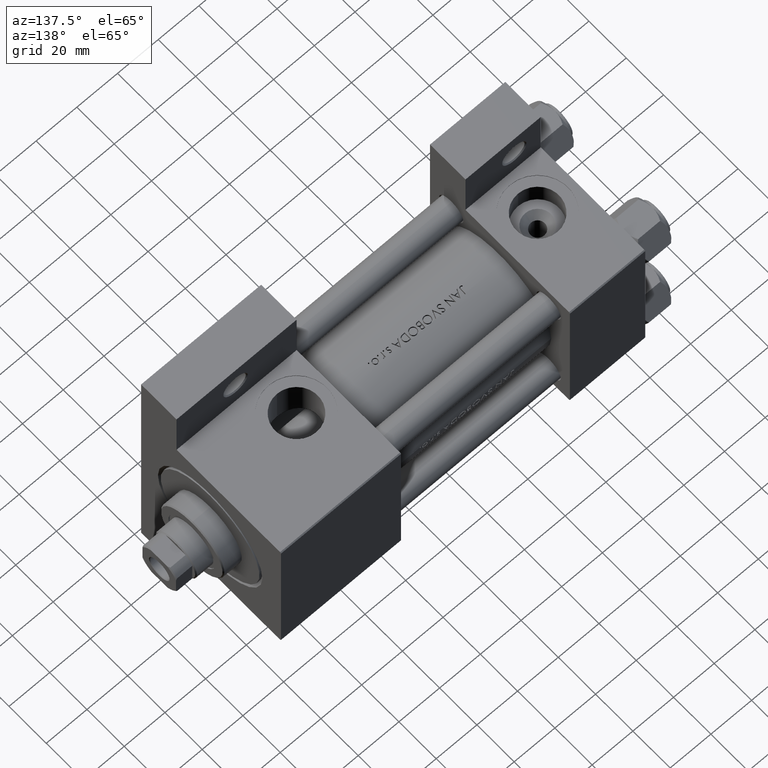
[diagram: clean part render]
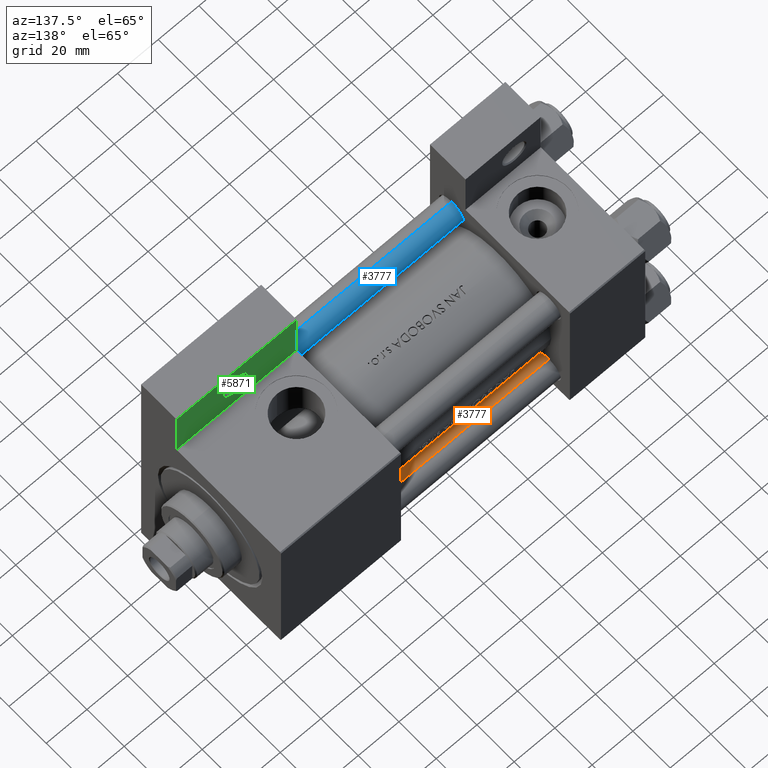
[diagram: same view with three faces highlighted in distinct colors, each labeled with its STEP entity id]
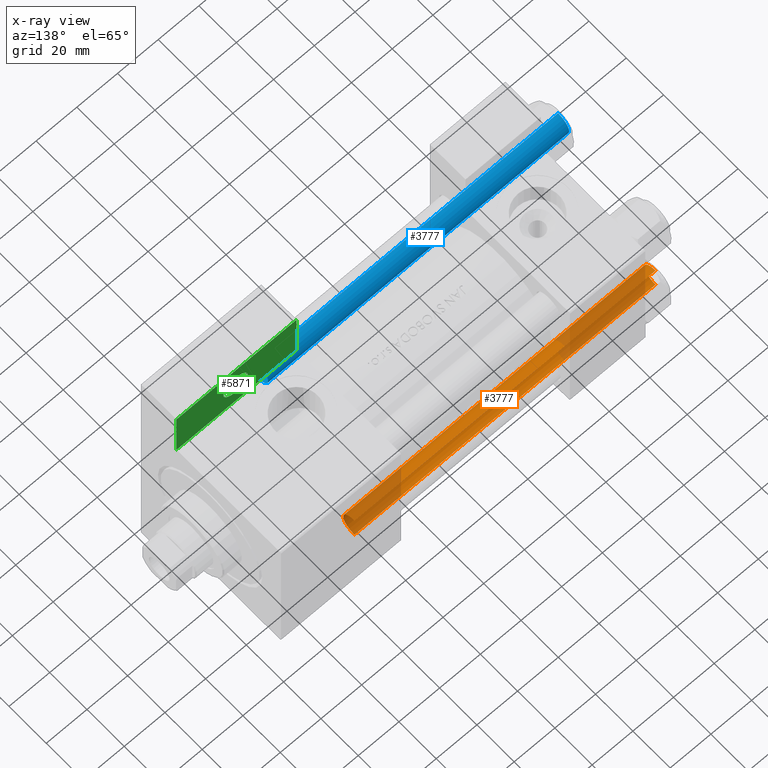
[diagram: x-ray of the same camera — body ghosted, the three highlighted faces saturated]
A machine part, auxiliary view with three faces highlighted in distinct colors.
The next image is the same camera in x-ray (body ghosted, the three faces saturated) — at least one of them is partly hidden behind the body in this view.
Their STEP definitions:

[orange] entity #3777 — the highlighted cylindrical surface (edge-blend (fillet) strip) has radius 6 mm, axis along (1, -0, -0).
#628 = EDGE_CURVE ( 'NONE', #18666, #28466, #14059, .T. ) ;
#2081 = DIRECTION ( 'NONE',  ( -1.000000000000000000, 0.000000000000000000, 0.000000000000000000 ) ) ;
#3539 = CARTESIAN_POINT ( 'NONE',  ( 6.000000000000000888, 7.347880794884120722E-16, 149.0000000000000000 ) ) ;
#3607 = CARTESIAN_POINT ( 'NONE',  ( -6.000000000000000888, 0.000000000000000000, 149.0000000000000000 ) ) ;
#3777 = ADVANCED_FACE ( 'NONE', ( #17286 ), #36714, .T. ) ;
#6108 = AXIS2_PLACEMENT_3D ( 'NONE', #34560, #18861, #15142 ) ;
#6554 = LINE ( 'NONE', #3539, #33699 ) ;
#6727 = ORIENTED_EDGE ( 'NONE', *, *, #628, .T. ) ;
#14059 = CIRCLE ( 'NONE', #42704, 6.000000000000000888 ) ;
#15142 = DIRECTION ( 'NONE',  ( 1.000000000000000000, 0.000000000000000000, 0.000000000000000000 ) ) ;
#15363 = DIRECTION ( 'NONE',  ( -0.000000000000000000, -0.000000000000000000, 1.000000000000000000 ) ) ;
#17286 = FACE_OUTER_BOUND ( 'NONE', #31958, .T. ) ;
#18251 = CARTESIAN_POINT ( 'NONE',  ( 0.000000000000000000, 0.000000000000000000, 149.0000000000000000 ) ) ;
#18666 = VERTEX_POINT ( 'NONE', #43429 ) ;
#18861 = DIRECTION ( 'NONE',  ( 0.000000000000000000, 0.000000000000000000, -1.000000000000000000 ) ) ;
#20244 = EDGE_CURVE ( 'NONE', #36666, #18666, #26767, .T. ) ;
#21005 = EDGE_CURVE ( 'NONE', #46620, #36666, #29941, .T. ) ;
#22055 = ORIENTED_EDGE ( 'NONE', *, *, #20244, .T. ) ;
#26222 = CARTESIAN_POINT ( 'NONE',  ( -6.000000000000000888, 0.000000000000000000, 148.5000000000000000 ) ) ;
#26223 = CARTESIAN_POINT ( 'NONE',  ( 6.000000000000000888, 7.347880794884120722E-16, 0.5000000000000281997 ) ) ;
#26767 = LINE ( 'NONE', #3607, #42679 ) ;
#28158 = CARTESIAN_POINT ( 'NONE',  ( 6.000000000000000888, 7.347880794884120722E-16, 148.5000000000000000 ) ) ;
#28466 = VERTEX_POINT ( 'NONE', #26223 ) ;
#29941 = CIRCLE ( 'NONE', #6108, 6.000000000000000888 ) ;
#31064 = CARTESIAN_POINT ( 'NONE',  ( 0.000000000000000000, 0.000000000000000000, 0.5000000000000281997 ) ) ;
#31223 = ORIENTED_EDGE ( 'NONE', *, *, #41692, .F. ) ;
#31958 = EDGE_LOOP ( 'NONE', ( #31223, #47998, #22055, #6727 ) ) ;
#33699 = VECTOR ( 'NONE', #36937, 1000.000000000000000 ) ;
#34560 = CARTESIAN_POINT ( 'NONE',  ( 0.000000000000000000, 0.000000000000000000, 148.5000000000000000 ) ) ;
#36666 = VERTEX_POINT ( 'NONE', #26222 ) ;
#36714 = CYLINDRICAL_SURFACE ( 'NONE', #43569, 6.000000000000000888 ) ;
#36937 = DIRECTION ( 'NONE',  ( -0.000000000000000000, -0.000000000000000000, -1.000000000000000000 ) ) ;
#37496 = DIRECTION ( 'NONE',  ( -0.000000000000000000, -0.000000000000000000, -1.000000000000000000 ) ) ;
#37537 = DIRECTION ( 'NONE',  ( 1.000000000000000000, 0.000000000000000000, 0.000000000000000000 ) ) ;
#40931 = DIRECTION ( 'NONE',  ( -0.000000000000000000, -0.000000000000000000, -1.000000000000000000 ) ) ;
#41692 = EDGE_CURVE ( 'NONE', #46620, #28466, #6554, .T. ) ;
#42679 = VECTOR ( 'NONE', #37496, 1000.000000000000000 ) ;
#42704 = AXIS2_PLACEMENT_3D ( 'NONE', #31064, #15363, #37537 ) ;
#43429 = CARTESIAN_POINT ( 'NONE',  ( -6.000000000000000888, 0.000000000000000000, 0.5000000000000281997 ) ) ;
#43569 = AXIS2_PLACEMENT_3D ( 'NONE', #18251, #40931, #2081 ) ;
#46620 = VERTEX_POINT ( 'NONE', #28158 ) ;
#47998 = ORIENTED_EDGE ( 'NONE', *, *, #21005, .T. ) ;

[blue] entity #3777 — the highlighted cylindrical surface (edge-blend (fillet) strip) has radius 6 mm, axis along (1, 0, 0).
#628 = EDGE_CURVE ( 'NONE', #18666, #28466, #14059, .T. ) ;
#2081 = DIRECTION ( 'NONE',  ( -1.000000000000000000, 0.000000000000000000, 0.000000000000000000 ) ) ;
#3539 = CARTESIAN_POINT ( 'NONE',  ( 6.000000000000000888, 7.347880794884120722E-16, 149.0000000000000000 ) ) ;
#3607 = CARTESIAN_POINT ( 'NONE',  ( -6.000000000000000888, 0.000000000000000000, 149.0000000000000000 ) ) ;
#3777 = ADVANCED_FACE ( 'NONE', ( #17286 ), #36714, .T. ) ;
#6108 = AXIS2_PLACEMENT_3D ( 'NONE', #34560, #18861, #15142 ) ;
#6554 = LINE ( 'NONE', #3539, #33699 ) ;
#6727 = ORIENTED_EDGE ( 'NONE', *, *, #628, .T. ) ;
#14059 = CIRCLE ( 'NONE', #42704, 6.000000000000000888 ) ;
#15142 = DIRECTION ( 'NONE',  ( 1.000000000000000000, 0.000000000000000000, 0.000000000000000000 ) ) ;
#15363 = DIRECTION ( 'NONE',  ( -0.000000000000000000, -0.000000000000000000, 1.000000000000000000 ) ) ;
#17286 = FACE_OUTER_BOUND ( 'NONE', #31958, .T. ) ;
#18251 = CARTESIAN_POINT ( 'NONE',  ( 0.000000000000000000, 0.000000000000000000, 149.0000000000000000 ) ) ;
#18666 = VERTEX_POINT ( 'NONE', #43429 ) ;
#18861 = DIRECTION ( 'NONE',  ( 0.000000000000000000, 0.000000000000000000, -1.000000000000000000 ) ) ;
#20244 = EDGE_CURVE ( 'NONE', #36666, #18666, #26767, .T. ) ;
#21005 = EDGE_CURVE ( 'NONE', #46620, #36666, #29941, .T. ) ;
#22055 = ORIENTED_EDGE ( 'NONE', *, *, #20244, .T. ) ;
#26222 = CARTESIAN_POINT ( 'NONE',  ( -6.000000000000000888, 0.000000000000000000, 148.5000000000000000 ) ) ;
#26223 = CARTESIAN_POINT ( 'NONE',  ( 6.000000000000000888, 7.347880794884120722E-16, 0.5000000000000281997 ) ) ;
#26767 = LINE ( 'NONE', #3607, #42679 ) ;
#28158 = CARTESIAN_POINT ( 'NONE',  ( 6.000000000000000888, 7.347880794884120722E-16, 148.5000000000000000 ) ) ;
#28466 = VERTEX_POINT ( 'NONE', #26223 ) ;
#29941 = CIRCLE ( 'NONE', #6108, 6.000000000000000888 ) ;
#31064 = CARTESIAN_POINT ( 'NONE',  ( 0.000000000000000000, 0.000000000000000000, 0.5000000000000281997 ) ) ;
#31223 = ORIENTED_EDGE ( 'NONE', *, *, #41692, .F. ) ;
#31958 = EDGE_LOOP ( 'NONE', ( #31223, #47998, #22055, #6727 ) ) ;
#33699 = VECTOR ( 'NONE', #36937, 1000.000000000000000 ) ;
#34560 = CARTESIAN_POINT ( 'NONE',  ( 0.000000000000000000, 0.000000000000000000, 148.5000000000000000 ) ) ;
#36666 = VERTEX_POINT ( 'NONE', #26222 ) ;
#36714 = CYLINDRICAL_SURFACE ( 'NONE', #43569, 6.000000000000000888 ) ;
#36937 = DIRECTION ( 'NONE',  ( -0.000000000000000000, -0.000000000000000000, -1.000000000000000000 ) ) ;
#37496 = DIRECTION ( 'NONE',  ( -0.000000000000000000, -0.000000000000000000, -1.000000000000000000 ) ) ;
#37537 = DIRECTION ( 'NONE',  ( 1.000000000000000000, 0.000000000000000000, 0.000000000000000000 ) ) ;
#40931 = DIRECTION ( 'NONE',  ( -0.000000000000000000, -0.000000000000000000, -1.000000000000000000 ) ) ;
#41692 = EDGE_CURVE ( 'NONE', #46620, #28466, #6554, .T. ) ;
#42679 = VECTOR ( 'NONE', #37496, 1000.000000000000000 ) ;
#42704 = AXIS2_PLACEMENT_3D ( 'NONE', #31064, #15363, #37537 ) ;
#43429 = CARTESIAN_POINT ( 'NONE',  ( -6.000000000000000888, 0.000000000000000000, 0.5000000000000281997 ) ) ;
#43569 = AXIS2_PLACEMENT_3D ( 'NONE', #18251, #40931, #2081 ) ;
#46620 = VERTEX_POINT ( 'NONE', #28158 ) ;
#47998 = ORIENTED_EDGE ( 'NONE', *, *, #21005, .T. ) ;

[green] entity #5871 — the highlighted planar face has unit normal (0, -1, 0).
#909 = EDGE_CURVE ( 'NONE', #41778, #4767, #4542, .T. ) ;
#1604 = CIRCLE ( 'NONE', #26258, 5.999500000000018929 ) ;
#2613 = CARTESIAN_POINT ( 'NONE',  ( 150.0000000000000284, -51.00000000000000000, -18.50000000000000000 ) ) ;
#3051 = VERTEX_POINT ( 'NONE', #16500 ) ;
#3753 = DIRECTION ( 'NONE',  ( 0.000000000000000000, 0.000000000000000000, -1.000000000000000000 ) ) ;
#3780 = ORIENTED_EDGE ( 'NONE', *, *, #909, .F. ) ;
#4124 = ORIENTED_EDGE ( 'NONE', *, *, #7092, .F. ) ;
#4542 = LINE ( 'NONE', #34424, #8494 ) ;
#4767 = VERTEX_POINT ( 'NONE', #42672 ) ;
#5694 = CARTESIAN_POINT ( 'NONE',  ( 120.0000000000000000, -37.50000000000000000, -18.50000000000000000 ) ) ;
#5871 = ADVANCED_FACE ( 'NONE', ( #34896, #30909 ), #38640, .F. ) ;
#7092 = EDGE_CURVE ( 'NONE', #3051, #41778, #48878, .T. ) ;
#8494 = VECTOR ( 'NONE', #15753, 1000.000000000000000 ) ;
#8671 = AXIS2_PLACEMENT_3D ( 'NONE', #2613, #17806, #29254 ) ;
#9140 = DIRECTION ( 'NONE',  ( -0.000000000000000000, -1.000000000000000000, -0.000000000000000000 ) ) ;
#10296 = VECTOR ( 'NONE', #48158, 1000.000000000000000 ) ;
#10679 = DIRECTION ( 'NONE',  ( 0.000000000000000000, 0.000000000000000000, -1.000000000000000000 ) ) ;
#10999 = DIRECTION ( 'NONE',  ( -1.000000000000000000, 0.000000000000000000, -0.000000000000000000 ) ) ;
#12653 = CIRCLE ( 'NONE', #8671, 5.999500000000018929 ) ;
#14421 = CARTESIAN_POINT ( 'NONE',  ( 150.0000000000000284, -51.00000000000000000, -18.50000000000000000 ) ) ;
#15133 = VECTOR ( 'NONE', #9140, 1000.000000000000000 ) ;
#15753 = DIRECTION ( 'NONE',  ( 5.337610695313252371E-16, 1.000000000000000000, 0.000000000000000000 ) ) ;
#16500 = CARTESIAN_POINT ( 'NONE',  ( 179.0000000000000000, -63.50000000000002842, -18.50000000000000000 ) ) ;
#17806 = DIRECTION ( 'NONE',  ( 0.000000000000000000, 0.000000000000000000, -1.000000000000000000 ) ) ;
#18550 = EDGE_CURVE ( 'NONE', #4767, #47840, #21363, .T. ) ;
#20357 = VERTEX_POINT ( 'NONE', #39480 ) ;
#20825 = CARTESIAN_POINT ( 'NONE',  ( 179.0000000000000000, -63.50000000000002842, -18.50000000000000000 ) ) ;
#21363 = LINE ( 'NONE', #5694, #37931 ) ;
#21568 = CARTESIAN_POINT ( 'NONE',  ( 179.0000000000000000, -37.50000000000000711, -18.50000000000000355 ) ) ;
#23820 = LINE ( 'NONE', #20825, #15133 ) ;
#25499 = ORIENTED_EDGE ( 'NONE', *, *, #18550, .F. ) ;
#26258 = AXIS2_PLACEMENT_3D ( 'NONE', #14421, #10679, #34055 ) ;
#26455 = EDGE_LOOP ( 'NONE', ( #33560, #25499, #3780, #4124 ) ) ;
#27215 = CARTESIAN_POINT ( 'NONE',  ( 119.9999999999999858, -63.50000000000000000, -18.50000000000000000 ) ) ;
#29141 = EDGE_CURVE ( 'NONE', #33030, #20357, #1604, .T. ) ;
#29254 = DIRECTION ( 'NONE',  ( -1.000000000000000000, 0.000000000000000000, 0.000000000000000000 ) ) ;
#30909 = FACE_OUTER_BOUND ( 'NONE', #26455, .T. ) ;
#31300 = ORIENTED_EDGE ( 'NONE', *, *, #47212, .T. ) ;
#31737 = AXIS2_PLACEMENT_3D ( 'NONE', #49065, #3753, #10999 ) ;
#32583 = EDGE_CURVE ( 'NONE', #47840, #3051, #23820, .T. ) ;
#33030 = VERTEX_POINT ( 'NONE', #38107 ) ;
#33210 = CARTESIAN_POINT ( 'NONE',  ( 119.9999999999999858, -63.50000000000000000, -18.50000000000000000 ) ) ;
#33560 = ORIENTED_EDGE ( 'NONE', *, *, #32583, .F. ) ;
#34055 = DIRECTION ( 'NONE',  ( -1.000000000000000000, 0.000000000000000000, 0.000000000000000000 ) ) ;
#34307 = ORIENTED_EDGE ( 'NONE', *, *, #29141, .T. ) ;
#34424 = CARTESIAN_POINT ( 'NONE',  ( 119.9999999999999858, -63.50000000000000000, -18.50000000000000000 ) ) ;
#34896 = FACE_BOUND ( 'NONE', #42263, .T. ) ;
#37931 = VECTOR ( 'NONE', #40068, 1000.000000000000000 ) ;
#38107 = CARTESIAN_POINT ( 'NONE',  ( 155.9995000000000402, -51.00000000000000000, -18.50000000000000000 ) ) ;
#38640 = PLANE ( 'NONE',  #31737 ) ;
#39480 = CARTESIAN_POINT ( 'NONE',  ( 144.0005000000000166, -51.00000000000000000, -18.50000000000000000 ) ) ;
#40068 = DIRECTION ( 'NONE',  ( 1.000000000000000000, -3.528251137579946599E-16, 0.000000000000000000 ) ) ;
#41778 = VERTEX_POINT ( 'NONE', #27215 ) ;
#42263 = EDGE_LOOP ( 'NONE', ( #34307, #31300 ) ) ;
#42672 = CARTESIAN_POINT ( 'NONE',  ( 120.0000000000000000, -37.50000000000000000, -18.50000000000000000 ) ) ;
#47212 = EDGE_CURVE ( 'NONE', #20357, #33030, #12653, .T. ) ;
#47840 = VERTEX_POINT ( 'NONE', #21568 ) ;
#48158 = DIRECTION ( 'NONE',  ( -1.000000000000000000, 4.704334850106594808E-16, -0.000000000000000000 ) ) ;
#48878 = LINE ( 'NONE', #33210, #10296 ) ;
#49065 = CARTESIAN_POINT ( 'NONE',  ( 0.000000000000000000, 0.000000000000000000, -18.50000000000000000 ) ) ;